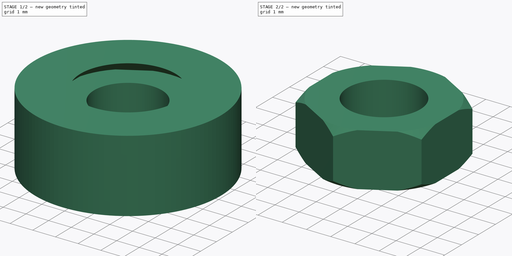
[diagram: build sequence overview — one tinted view per stage of 2, left to right]
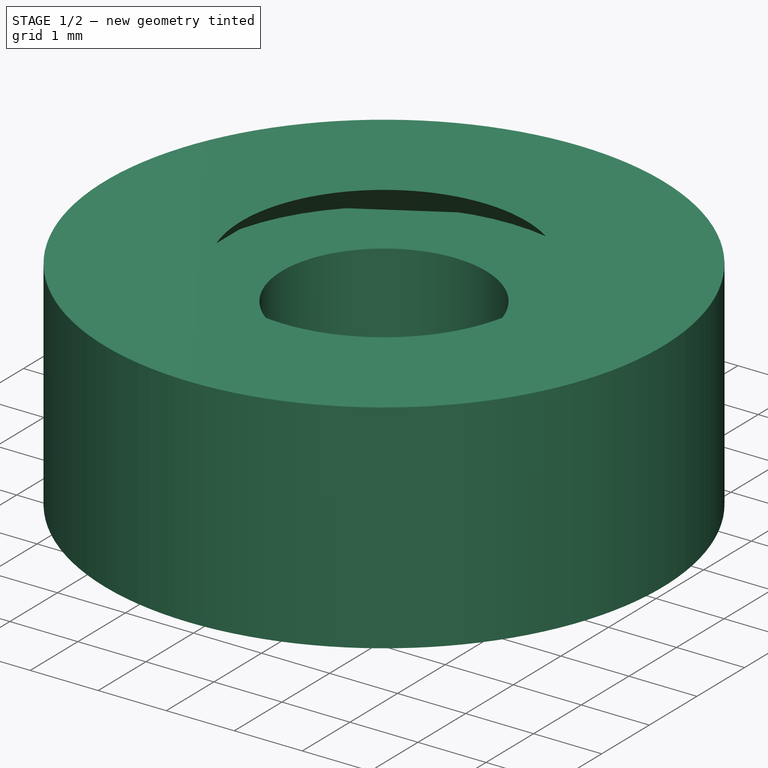
[diagram: stage 1 of 2 — iso view after this stage's code; geometry added in this stage tinted green]
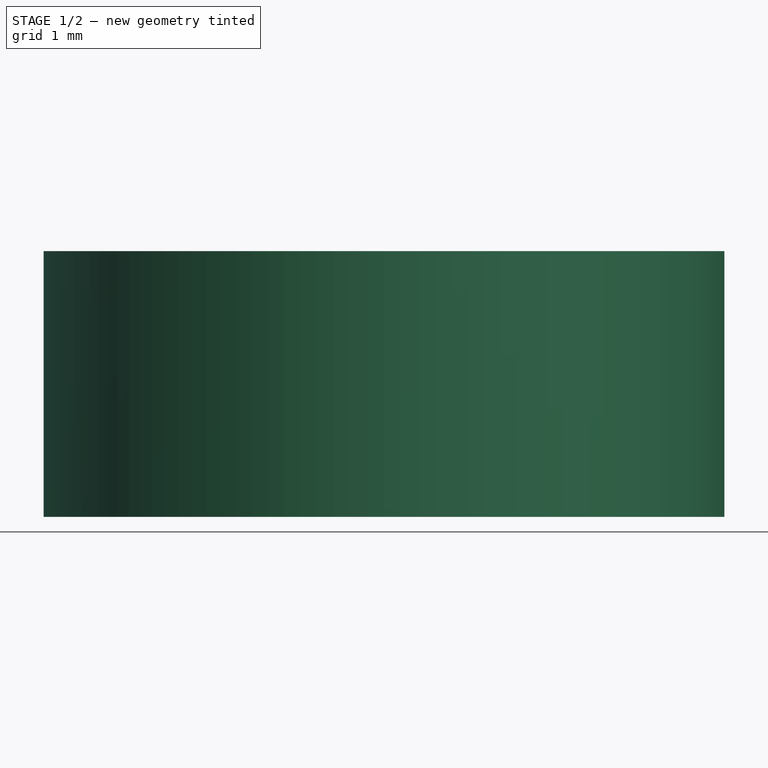
[diagram: stage 1 of 2 — front view after this stage's code; geometry added in this stage tinted green]
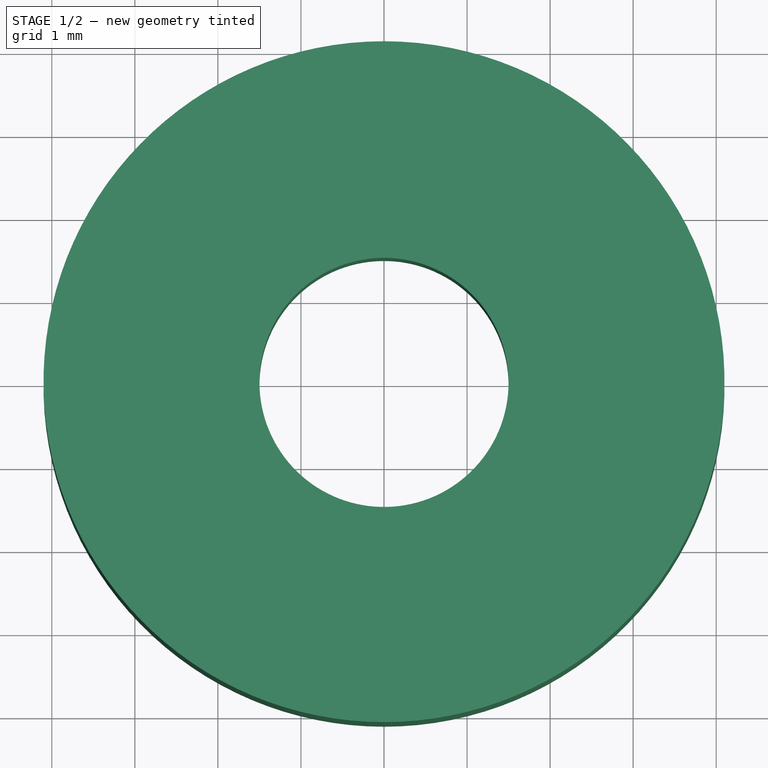
[diagram: stage 1 of 2 — top view after this stage's code; geometry added in this stage tinted green]
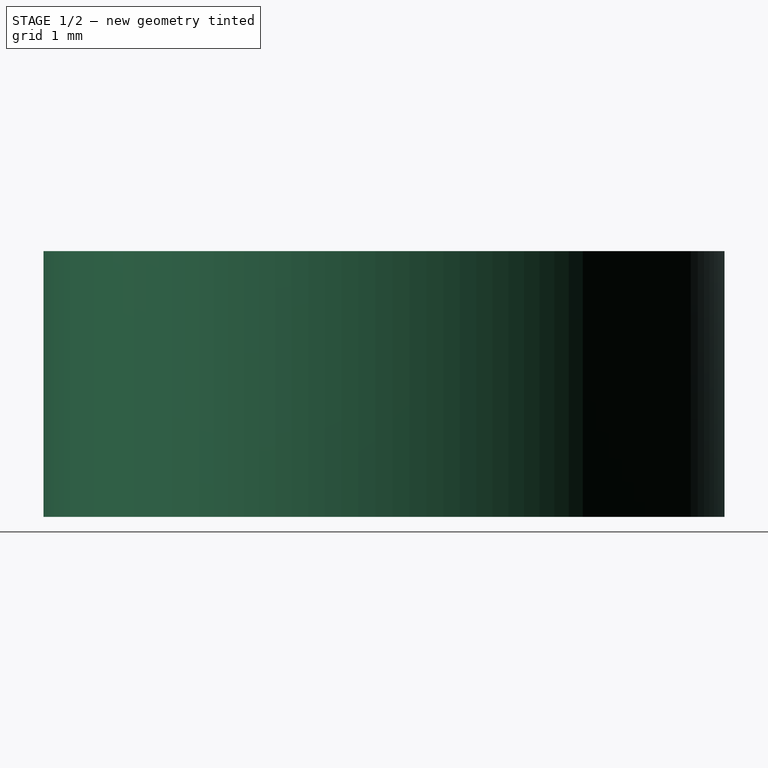
[diagram: stage 1 of 2 — right view after this stage's code; geometry added in this stage tinted green]
FCSTD DOCUMENT  (FreeCAD 1.0R39319 (Git))
Label: Nut-M3
License: All rights reserved
LicenseURL: http://en.wikipedia.org/wiki/All_rights_reserved
objects: Sketcher::SketchObject×2, PartDesign::Body×2, PartDesign::Pad×1, PartDesign::Revolution×1, Part::Cut×1
note: 13 computed .brp shape members not serialized (recipe doc carries the construction recipe); baked Part::Feature solids carry a one-line shape summary decoded from their .brp

FEATURE [Sketcher::SketchObject] Sketch
  ArcFitTolerance = 0
  AttachmentSupport = -> [XY_Plane]
  FullyConstrained = true
  MakeInternals = false
  MapMode = 5
  sketch-geometry (8):
    g0: LineSegment StartX=2.6 StartY=1.50111 StartZ=0 EndX=0 EndY=3.00222 EndZ=0
    g1: LineSegment StartX=0 StartY=3.00222 StartZ=0 EndX=-2.6 EndY=1.50111 EndZ=0
    g2: LineSegment StartX=-2.6 StartY=1.50111 StartZ=0 EndX=-2.6 EndY=-1.50111 EndZ=0
    g3: LineSegment StartX=-2.6 StartY=-1.50111 StartZ=0 EndX=4e-16 EndY=-3.00222 EndZ=0
    g4: LineSegment StartX=4e-16 StartY=-3.00222 StartZ=0 EndX=2.6 EndY=-1.50111 EndZ=0
    g5: LineSegment StartX=2.6 StartY=-1.50111 StartZ=0 EndX=2.6 EndY=1.50111 EndZ=0
    g6: Circle [constr] CenterX=0 CenterY=0 CenterZ=0 NormalX=0 NormalY=0 NormalZ=1 AngleXU=0 Radius=3.00222
    g7: Circle CenterX=0 CenterY=0 CenterZ=0 NormalX=0 NormalY=0 NormalZ=1 AngleXU=0 Radius=1.5
  constraints (18):
    c: Coincident(g0,g1)
    c: Coincident(g1,g2)
    c: Coincident(g2,g3)
    c: Coincident(g3,g4)
    c: Coincident(g4,g5)
    c: Coincident(g5,g0)
    c: Equal(g0, g1-g5) x5
    c: PointOnObject(g0,g6)
    c: PointOnObject(g1,g6)
    c: PointOnObject(g2,g6)
    c: PointOnObject(g3,g6)
    c: PointOnObject(g4,g6)
    c: PointOnObject(g5,g6)
    c: Coincident(g6,g-1)
    c: Coincident(g7,g-1)
    c: Diameter(g7) = 3
    c: Vertical(g2)
    c: DistanceX(g1,g0) = 5.2
FEATURE [PartDesign::Pad] Pad
  AllowMultiFace = false
  Direction = (0,0,1)
  Length = 2.2
  Length2 = 100
  Midplane = true
  Profile = -> Sketch
  Suppressed = false
  Type = 0
FEATURE [PartDesign::Body] Body
  AllowCompound = false
  Group = -> [Sketch,Pad]
  Origin = -> Origin
  Tip = -> Pad
FEATURE [Sketcher::SketchObject] Sketch002
  ArcFitTolerance = 0
  AttachmentSupport = -> [YZ_Plane001]
  FullyConstrained = true
  MakeInternals = false
  MapMode = 5
  Placement = pos=(0,0,0) rot=(0.57735,0.57735,0.57735;2.0944rad)
  sketch-geometry (6):
    g0: LineSegment StartX=2.1 StartY=1.6 StartZ=0 EndX=3.1 EndY=0.75 EndZ=0
    g1: LineSegment StartX=3.1 StartY=0.75 StartZ=0 EndX=3.1 EndY=-0.75 EndZ=0
    g2: LineSegment StartX=3.1 StartY=-0.75 StartZ=0 EndX=2.1 EndY=-1.6 EndZ=0
    g3: LineSegment StartX=2.1 StartY=-1.6 StartZ=0 EndX=4.1 EndY=-1.6 EndZ=0
    g4: LineSegment StartX=4.1 StartY=-1.6 StartZ=0 EndX=4.1 EndY=1.6 EndZ=0
    g5: LineSegment StartX=4.1 StartY=1.6 StartZ=0 EndX=2.1 EndY=1.6 EndZ=0
  constraints (16):
    c: Coincident(g0,g1)
    c: Coincident(g1,g2)
    c: Coincident(g2,g3)
    c: Horizontal(g3)
    c: Coincident(g3,g4)
    c: Coincident(g4,g5)
    c: Horizontal(g5)
    c: Coincident(g5,g0)
    c: Symmetric(g0,g1,g-1)
    c: Symmetric(g4,g3,g-1)
    c: DistanceX(g2) = 2.1
    c: Vertical(g0,g2)
    c: DistanceY(g1,g1) = 1.5
    c: DistanceY(g4,g4) = 3.2
    c: DistanceX(g3,g3) = 2
    c: DistanceX(g1) = 3.1
FEATURE [PartDesign::Revolution] Revolution
  AllowMultiFace = false
  Angle = 360
  Angle2 = 60
  Axis = (0,0,1)
  Base = (0,0,0)
  Placement = pos=(0,0,0) rot=(0.57735,0.57735,0.57735;2.0944rad)
  Profile = -> Sketch002
  ReferenceAxis = -> Sketch002 [V_Axis]
  Reversed = true
  Suppressed = false
  Type = 0
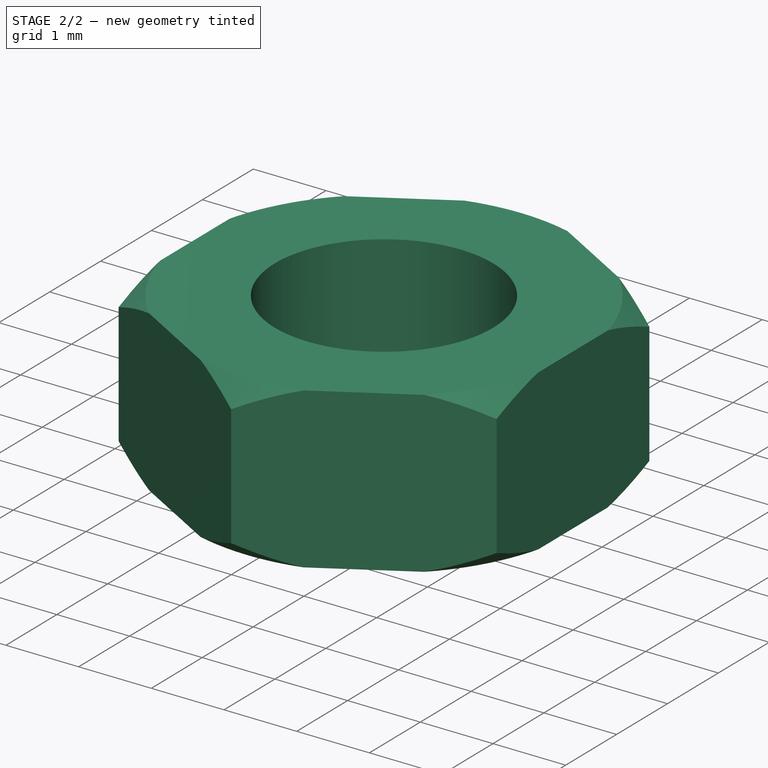
[diagram: stage 2 of 2 — iso view after this stage's code; geometry added in this stage tinted green]
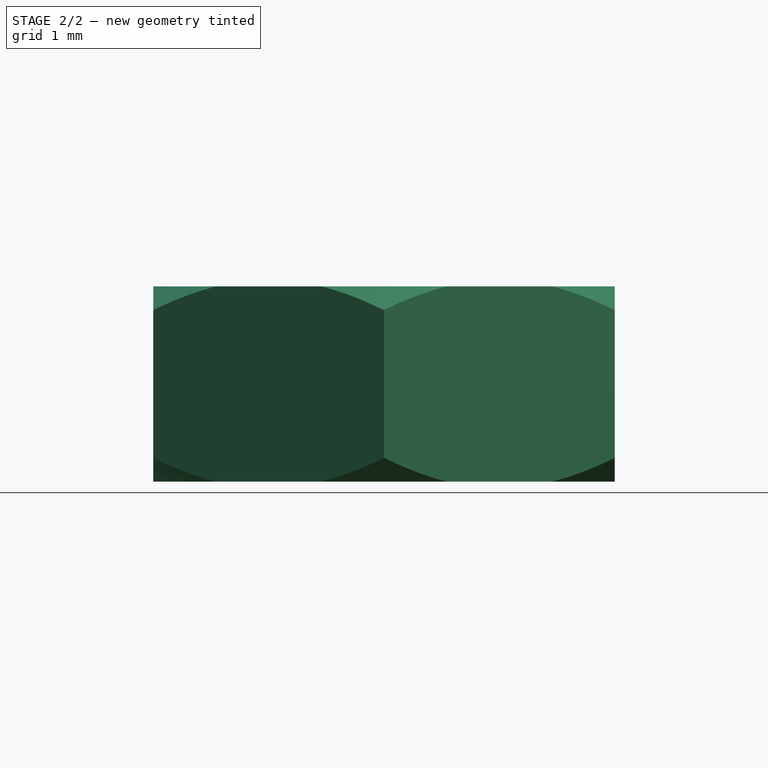
[diagram: stage 2 of 2 — front view after this stage's code; geometry added in this stage tinted green]
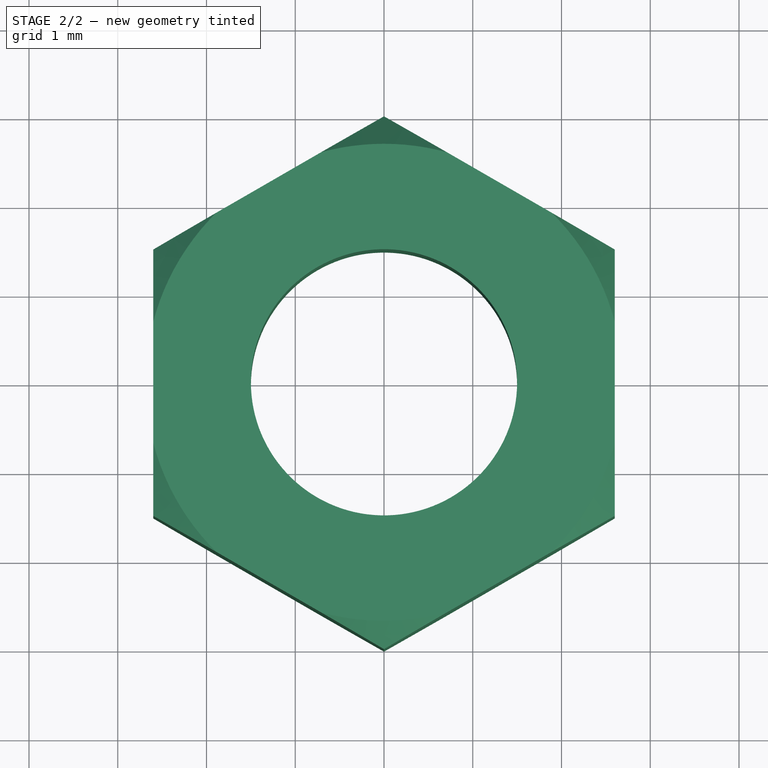
[diagram: stage 2 of 2 — top view after this stage's code; geometry added in this stage tinted green]
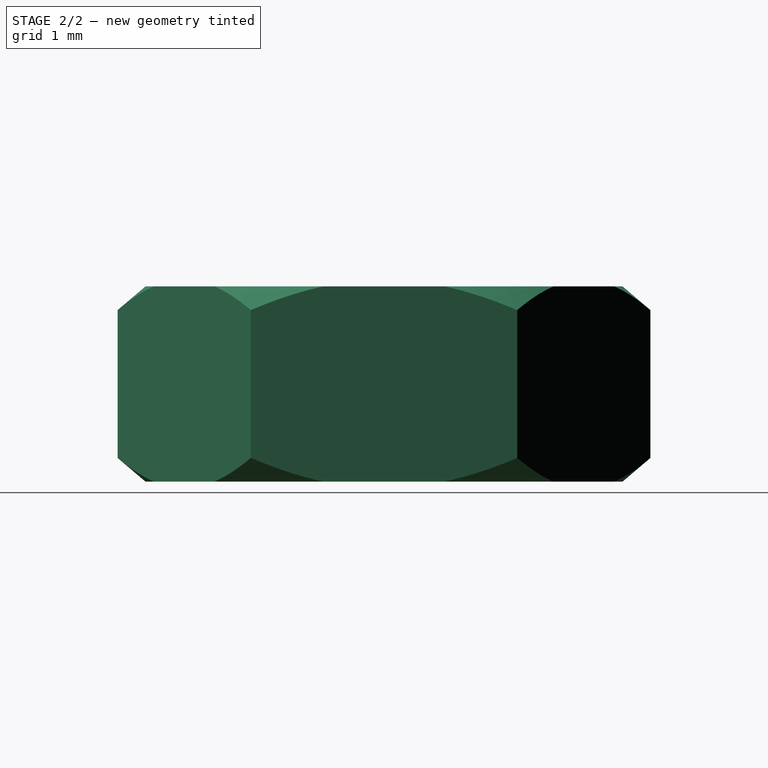
[diagram: stage 2 of 2 — right view after this stage's code; geometry added in this stage tinted green]
FEATURE [PartDesign::Body] Body001
  AllowCompound = false
  Group = -> [Sketch002,Revolution]
  Origin = -> Origin001
  Tip = -> Revolution
FEATURE [Part::Cut] Cut
  Base = -> Body
  Tool = -> Body001
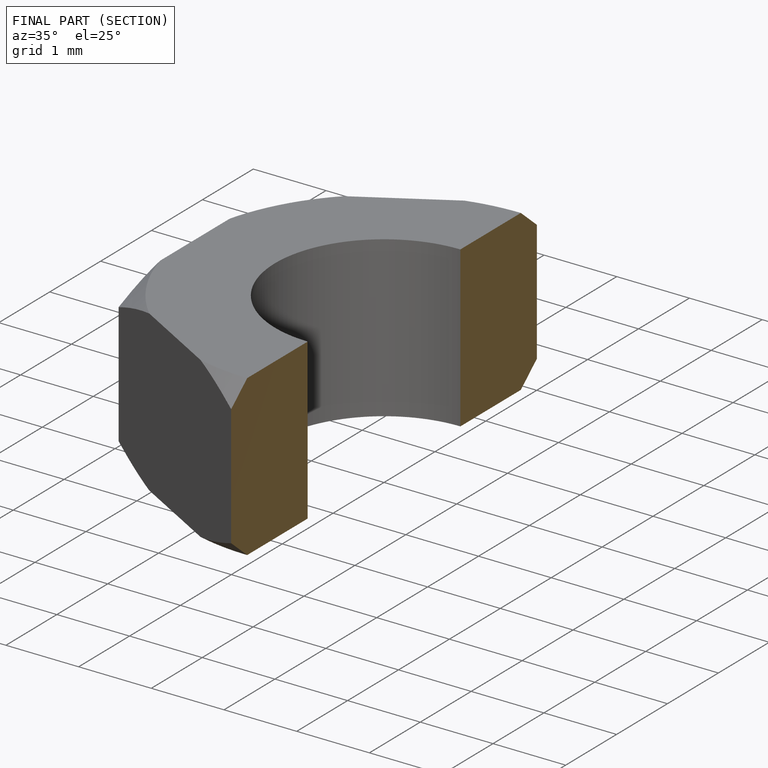
[diagram: finished part — half-section view (interior)]
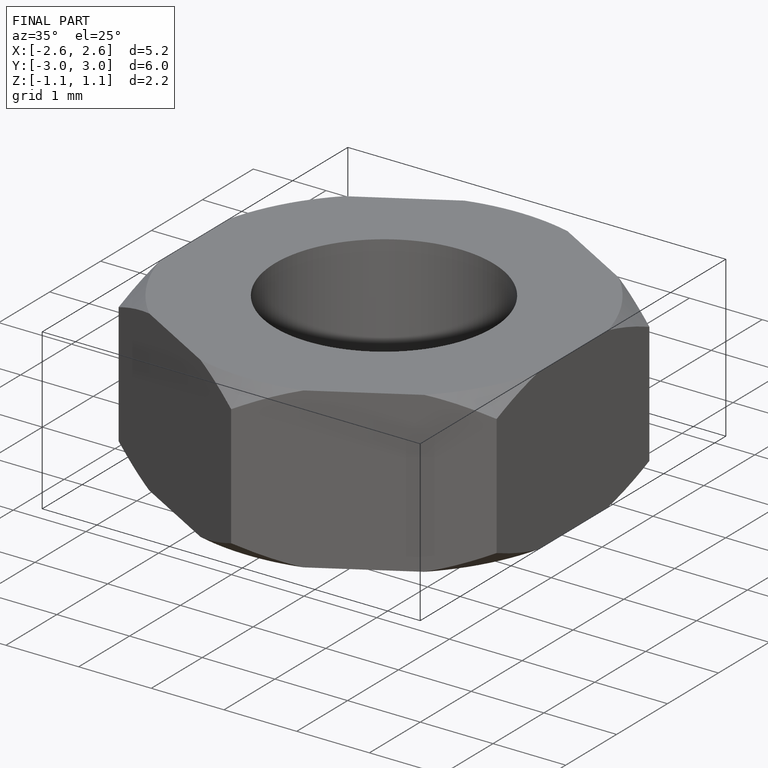
[diagram: finished part — iso view with bounding-box wireframe]
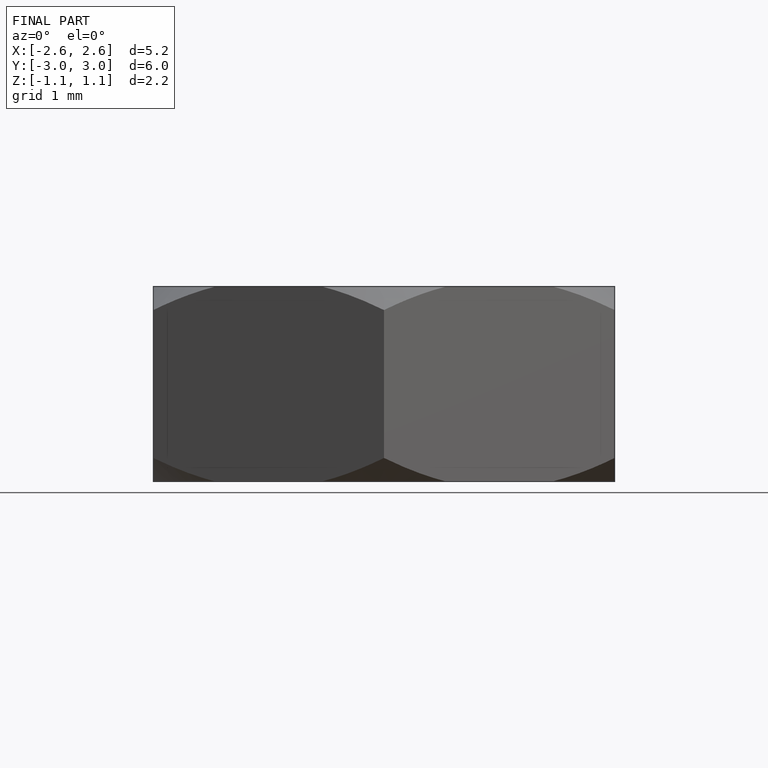
[diagram: finished part — front view with bounding-box wireframe]
